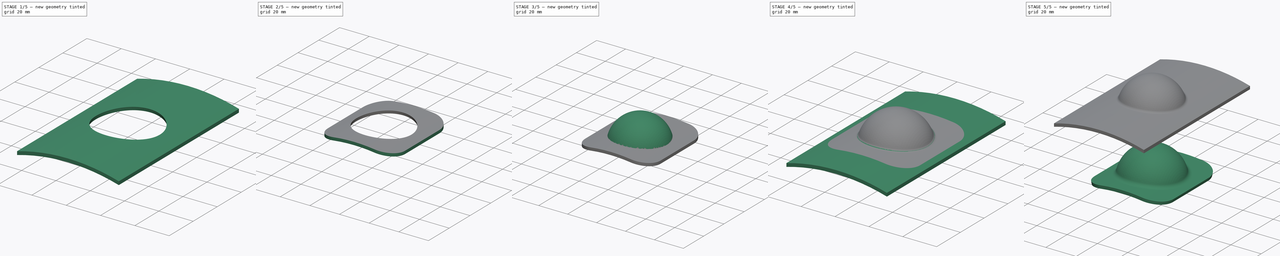
[diagram: build sequence overview — one tinted view per stage of 5, left to right]
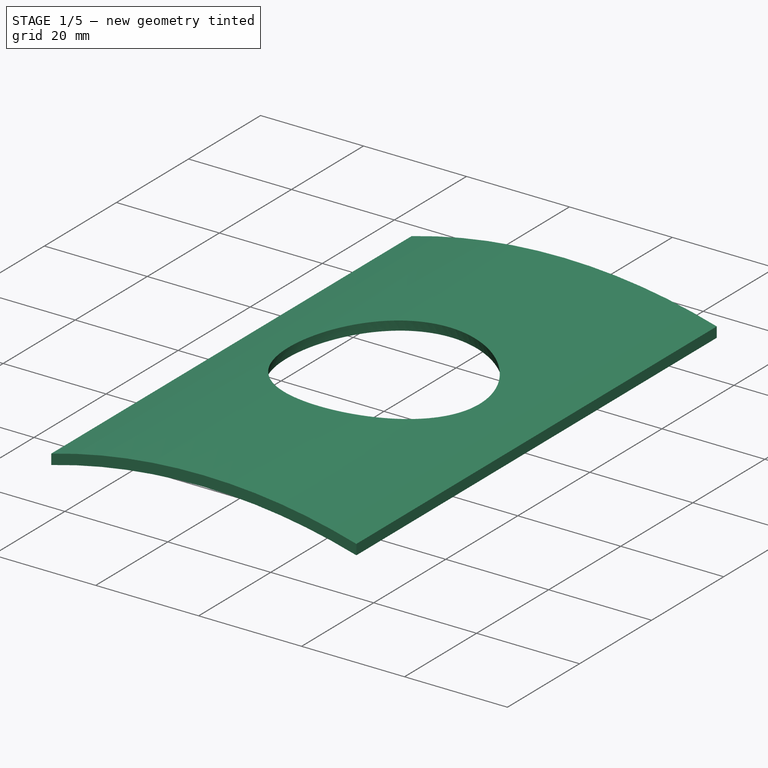
[diagram: stage 1 of 5 — iso view after this stage's code; geometry added in this stage tinted green]
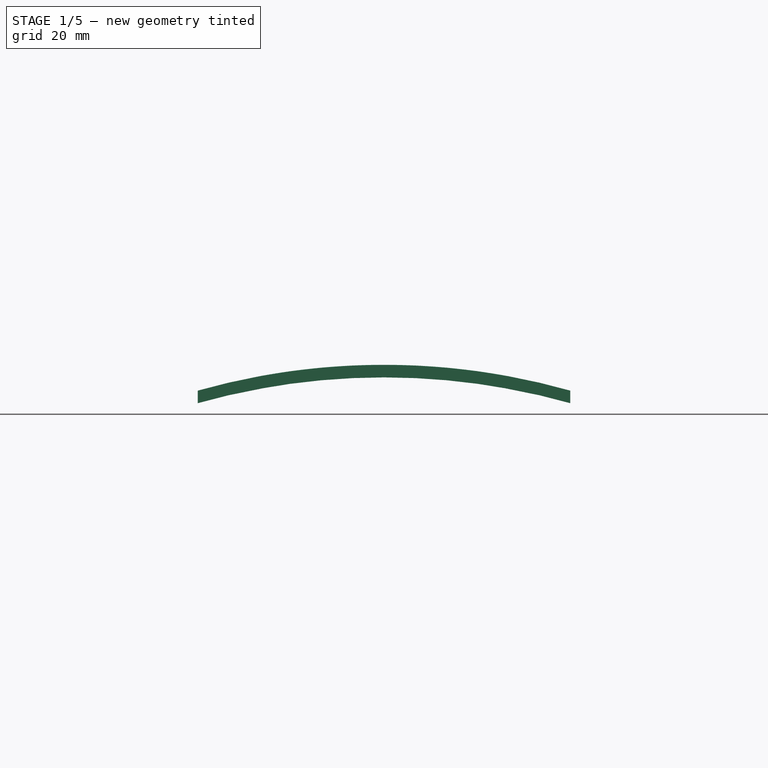
[diagram: stage 1 of 5 — front view after this stage's code; geometry added in this stage tinted green]
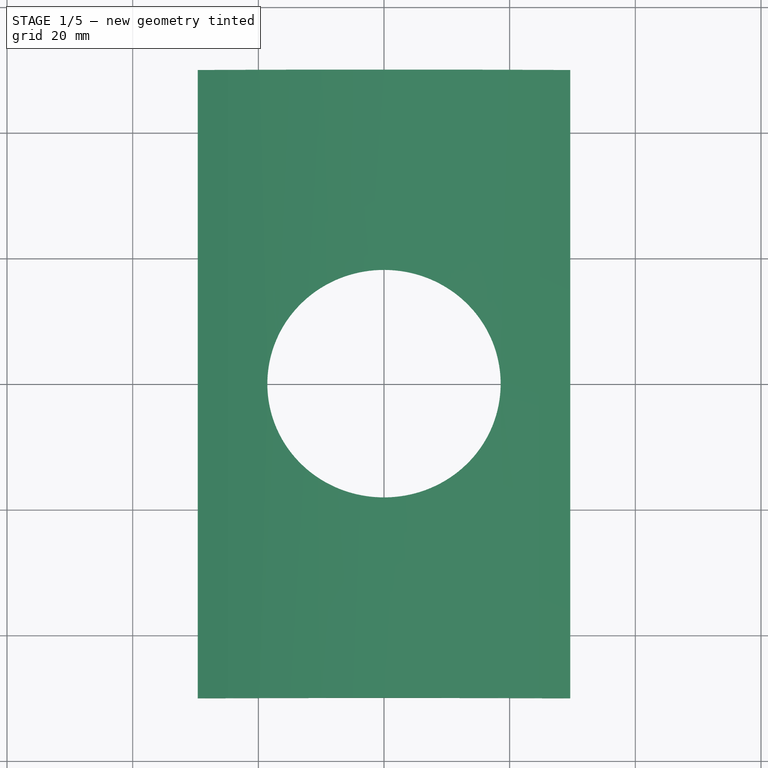
[diagram: stage 1 of 5 — top view after this stage's code; geometry added in this stage tinted green]
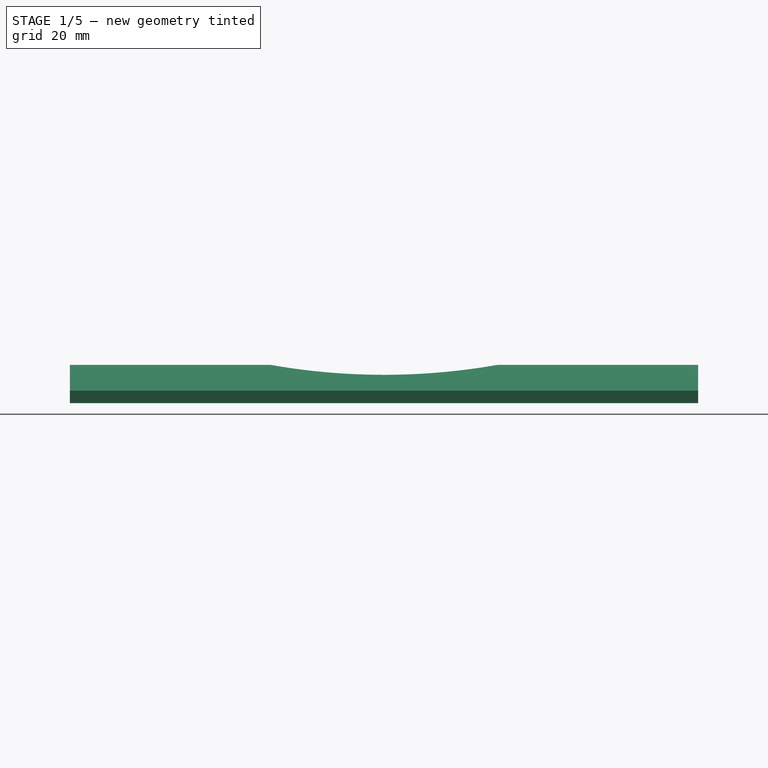
[diagram: stage 1 of 5 — right view after this stage's code; geometry added in this stage tinted green]
FCSTD DOCUMENT  (FreeCAD 0.21RUnknown)
Label: part29
License: All rights reserved
LicenseURL: http://en.wikipedia.org/wiki/All_rights_reserved
objects: Part::FeaturePython×20, Sketcher::SketchObject×6, App::DocumentObjectGroup×6, Part::Extrusion×5, Part::Revolution×2, Part::MultiFuse×2, Part::Fillet×2, Part::Offset×1
note: 38 computed .brp shape members not serialized (recipe doc carries the construction recipe); baked Part::Feature solids carry a one-line shape summary decoded from their .brp

FEATURE [Sketcher::SketchObject] Sketch003
  FullyConstrained = false
  Placement = pos=(0,0,0) rot=(1,0,0;1.5708rad)
  sketch-geometry (4):
    g0: ArcOfCircle CenterX=0 CenterY=0 CenterZ=0 NormalX=0 NormalY=0 NormalZ=1 AngleXU=0 Radius=19.1084 StartAngle=0 EndAngle=3.14159
    g1: ArcOfCircle CenterX=0 CenterY=0 CenterZ=0 NormalX=0 NormalY=0 NormalZ=1 AngleXU=0 Radius=18.1084 StartAngle=6.28319 EndAngle=9.42478
    g2: LineSegment StartX=-19.1084 StartY=0 StartZ=0 EndX=-18.1084 EndY=6.7e-15 EndZ=0
    g3: LineSegment StartX=18.1084 StartY=-1.82284e-08 StartZ=0 EndX=19.1084 EndY=0 EndZ=0
  constraints (11):
    c: PointOnObject(g0,g-1)
    c: PointOnObject(g0,g-1)
    c: Coincident(g0,g-1)
    c: PointOnObject(g1,g-1)
    c: Coincident(g1,g0)
    c: Coincident(g2,g0)
    c: Coincident(g2,g1)
    c: Coincident(g3,g1)
    c: Coincident(g3,g0)
    c: DistanceX(g2,g2) = 1
    c: Equal(g2,g3)
FEATURE [Part::Revolution] Revolve001
  Angle = 180
  Axis = (1,0,0)
  Base = (0,0,0)
  FaceMakerClass = Part::FaceMakerBullseye
  Solid = true
  Source = -> Sketch003
  Symmetric = true
FEATURE [Part::Extrusion] Extrude004
  Base = -> Extrude002
  Dir = (0,0,1)
  DirMode = 0
  FaceMakerClass = Part::FaceMakerBullseye
  LengthFwd = 2
  LengthRev = 0
  Solid = true
  Symmetric = false
FEATURE [Part::FeaturePython] Slice004  # WARN: FeaturePython — macro-defined, semantics opaque (R4)
  Base = -> Extrude004
  Mode = 1
  Tolerance = 0
  Tools = -> [Revolve001]
FEATURE [Part::FeaturePython] Slice004_child0  label="Slice004.0"  # WARN: FeaturePython — macro-defined, semantics opaque (R4)
  Base = -> Slice004
  FilterType = 1
  Invert = false
  OverrideMaxVal = 0
  WindowFrom = 80
  WindowTo = 100
  items = 0
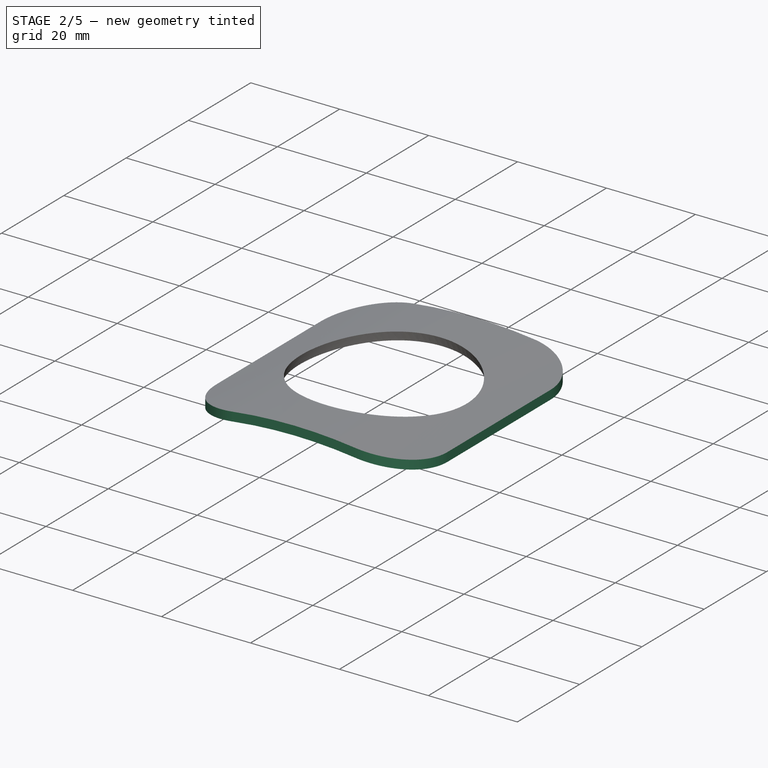
[diagram: stage 2 of 5 — iso view after this stage's code; geometry added in this stage tinted green]
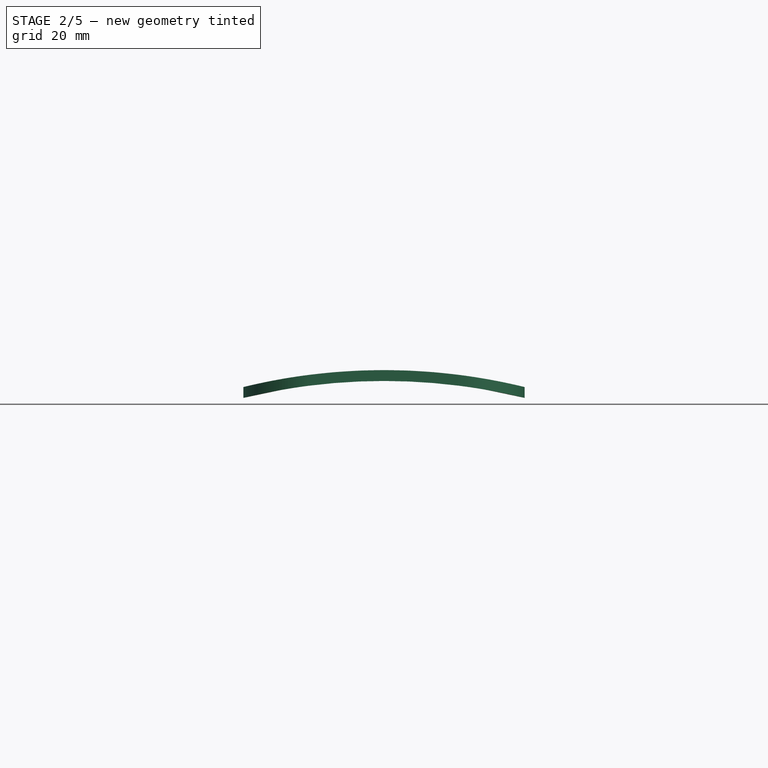
[diagram: stage 2 of 5 — front view after this stage's code; geometry added in this stage tinted green]
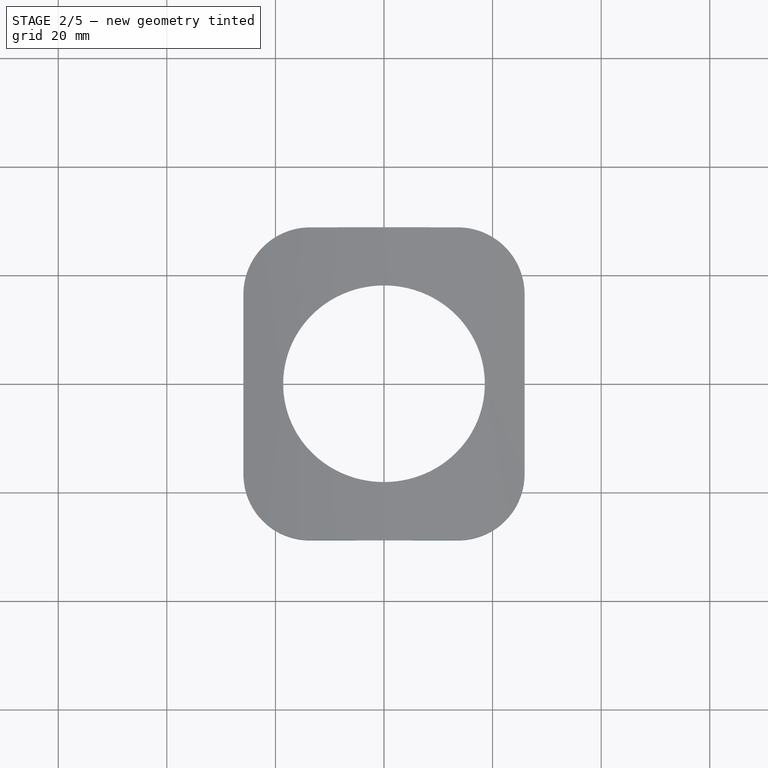
[diagram: stage 2 of 5 — top view after this stage's code; geometry added in this stage tinted green]
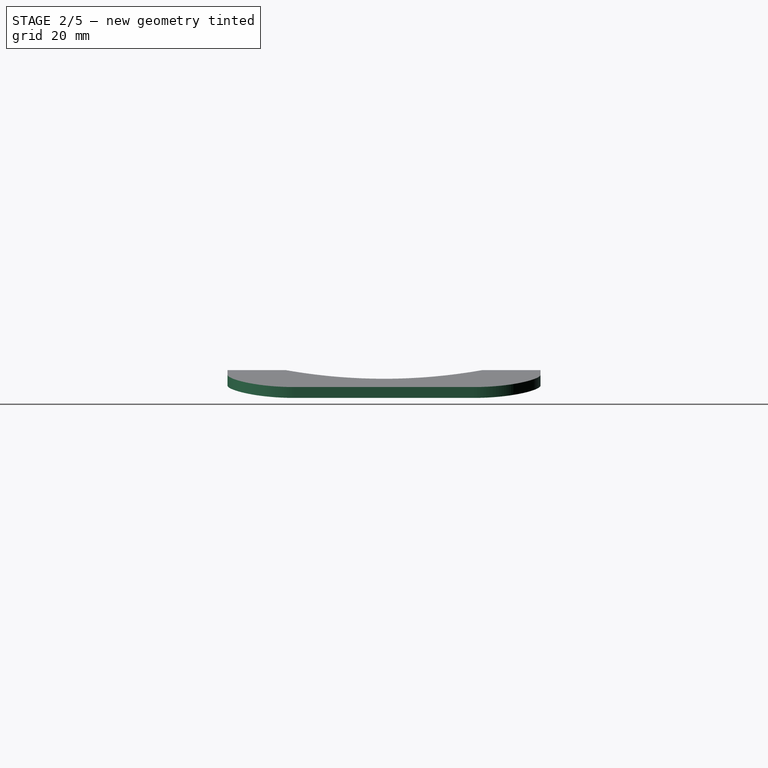
[diagram: stage 2 of 5 — right view after this stage's code; geometry added in this stage tinted green]
FEATURE [Sketcher::SketchObject] Sketch004
  FullyConstrained = false
  Placement = pos=(0,0,0) rot=(1,0,0;1.5708rad)
  sketch-geometry (1):
    g0: ArcOfCircle CenterX=-7.4e-15 CenterY=-104.915 CenterZ=0 NormalX=0 NormalY=0 NormalZ=1 AngleXU=0 Radius=109.022 StartAngle=1.29543 EndAngle=1.84616
  constraints (2):
    c: PointOnObject(g0,g-1)
    c: Symmetric(g0,g0,g-1)
FEATURE [Part::Extrusion] Extrude002
  Base = -> Sketch004
  Dir = (0,-1,2e-16)
  DirMode = 2
  FaceMakerClass = Part::FaceMakerBullseye
  LengthFwd = 100
  LengthRev = 0
  Solid = false
  Symmetric = true
FEATURE [Sketcher::SketchObject] Sketch005
  FullyConstrained = false
  sketch-geometry (10):
    g0: ArcOfCircle CenterX=-13.6277 CenterY=16.5579 CenterZ=0 NormalX=0 NormalY=0 NormalZ=1 AngleXU=0 Radius=12.2672 StartAngle=1.5708 EndAngle=3.14159
    g1: LineSegment StartX=-13.6277 StartY=28.8251 StartZ=0 EndX=13.6277 EndY=28.8251 EndZ=0
    g2: ArcOfCircle CenterX=13.6277 CenterY=16.5579 CenterZ=0 NormalX=0 NormalY=0 NormalZ=1 AngleXU=0 Radius=12.2672 StartAngle=0 EndAngle=1.5708
    g3: LineSegment StartX=25.8948 StartY=16.5579 StartZ=0 EndX=25.8948 EndY=-16.5579 EndZ=0
    g4: ArcOfCircle CenterX=13.6277 CenterY=-16.5579 CenterZ=0 NormalX=0 NormalY=0 NormalZ=1 AngleXU=0 Radius=12.2672 StartAngle=4.71239 EndAngle=6.28319
    g5: LineSegment StartX=13.6277 StartY=-28.8251 StartZ=0 EndX=-13.6277 EndY=-28.8251 EndZ=0
    g6: ArcOfCircle CenterX=-13.6277 CenterY=-16.5579 CenterZ=0 NormalX=0 NormalY=0 NormalZ=1 AngleXU=0 Radius=12.2672 StartAngle=3.14159 EndAngle=4.71239
    g7: LineSegment StartX=-25.8948 StartY=-16.5579 StartZ=0 EndX=-25.8948 EndY=16.5579 EndZ=0
    g8: GeomPoint X=-25.8948 Y=28.8251 Z=0
    g9: GeomPoint X=25.8948 Y=-28.8251 Z=0
  constraints (20):
    c: Tangent(g0,g1) = 1.5708
    c: Tangent(g1,g2) = 1.5708
    c: Tangent(g2,g3) = 1.5708
    c: Tangent(g3,g4) = 1.5708
    c: Tangent(g4,g5) = 1.5708
    c: Tangent(g5,g6) = 1.5708
    c: Tangent(g6,g7) = 1.5708
    c: Tangent(g7,g0) = 1.5708
    c: Horizontal(g1)
    c: Horizontal(g5)
    c: Vertical(g3)
    c: Vertical(g7)
    c: Equal(g0,g2)
    c: Equal(g2,g4)
    c: Equal(g4,g6)
    c: PointOnObject(g8,g1)
    c: PointOnObject(g8,g7)
    c: PointOnObject(g9,g3)
    c: PointOnObject(g9,g5)
    c: Symmetric(g6,g2,g-1)
FEATURE [Part::Extrusion] Extrude003
  Base = -> Sketch005
  Dir = (0,0,1)
  DirMode = 2
  FaceMakerClass = Part::FaceMakerBullseye
  LengthFwd = 15
  LengthRev = 0
  Solid = true
  Symmetric = false
FEATURE [App::DocumentObjectGroup] GrExplode_Slice004  label="Exploded Slice004"
  Group = -> [Slice004_child0,Slice004_child1,Slice004_child2]
FEATURE [Part::FeaturePython] Slice005  # WARN: FeaturePython — macro-defined, semantics opaque (R4)
  Base = -> Slice004_child0
  Mode = 1
  Tolerance = 0
  Tools = -> [Extrude003]
FEATURE [App::DocumentObjectGroup] GrExplode_Slice005  label="Exploded Slice005"
  Group = -> [Slice005_child0]
FEATURE [Part::FeaturePython] Slice005_child1  label="Slice005.1"  # WARN: FeaturePython — macro-defined, semantics opaque (R4)
  Base = -> Slice005
  FilterType = 1
  Invert = false
  OverrideMaxVal = 0
  WindowFrom = 80
  WindowTo = 100
  items = 1
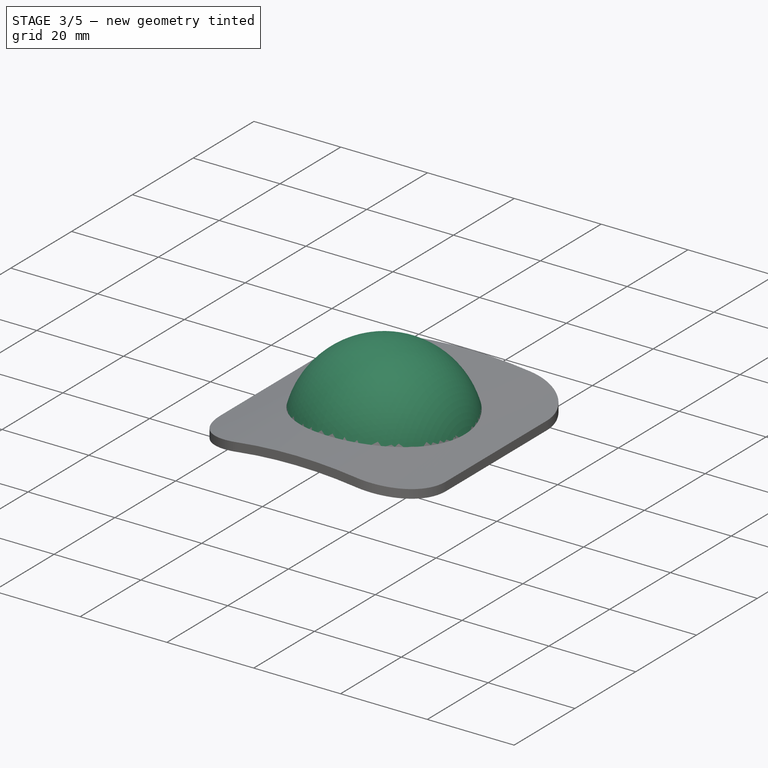
[diagram: stage 3 of 5 — iso view after this stage's code; geometry added in this stage tinted green]
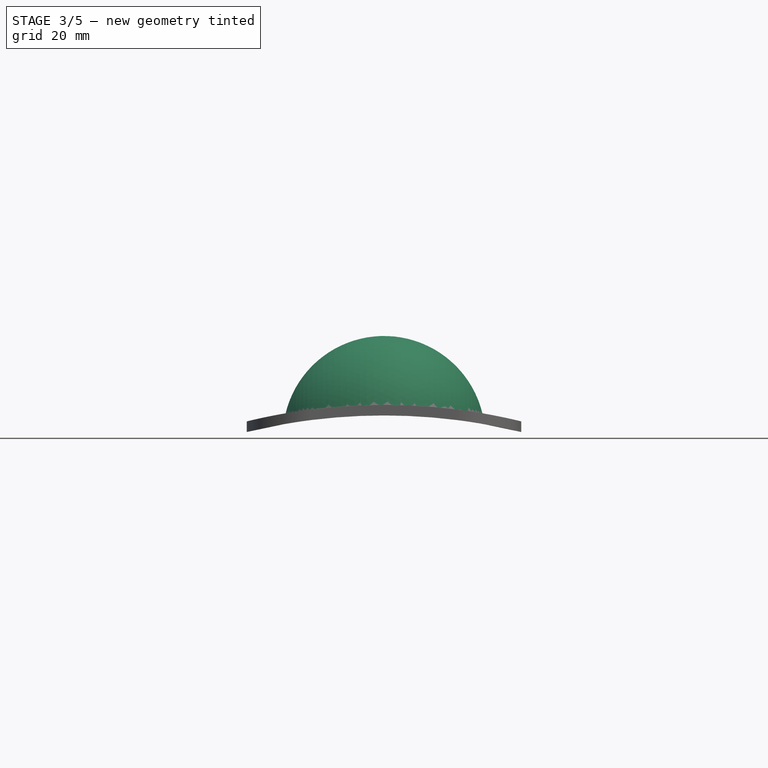
[diagram: stage 3 of 5 — front view after this stage's code; geometry added in this stage tinted green]
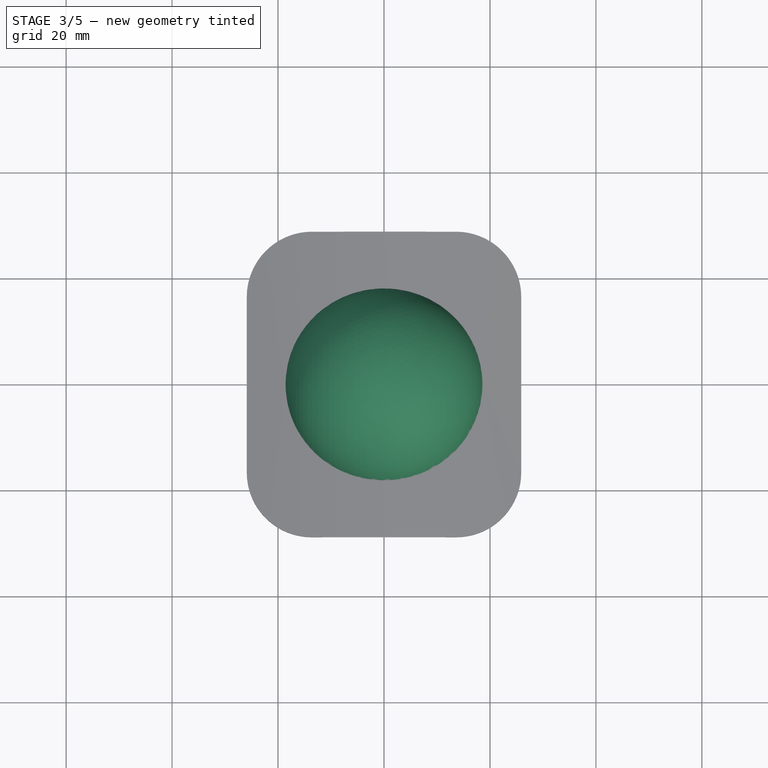
[diagram: stage 3 of 5 — top view after this stage's code; geometry added in this stage tinted green]
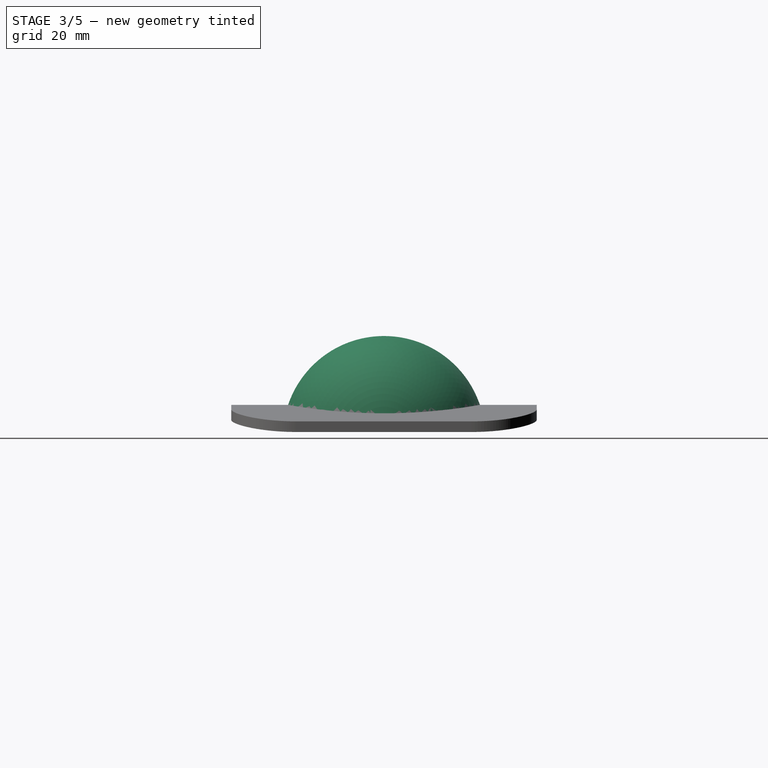
[diagram: stage 3 of 5 — right view after this stage's code; geometry added in this stage tinted green]
FEATURE [Part::FeaturePython] Slice003  # WARN: FeaturePython — macro-defined, semantics opaque (R4)
  Base = -> Revolve001
  Mode = 1
  Tolerance = 0
  Tools = -> [Extrude004]
FEATURE [Part::FeaturePython] Slice003_child1  label="Slice003.1"  # WARN: FeaturePython — macro-defined, semantics opaque (R4)
  Base = -> Slice003
  FilterType = 1
  Invert = false
  OverrideMaxVal = 0
  WindowFrom = 80
  WindowTo = 100
  items = 1
FEATURE [Part::FeaturePython] Slice003_child2  label="Slice003.2"  # WARN: FeaturePython — macro-defined, semantics opaque (R4)
  Base = -> Slice003
  FilterType = 1
  Invert = false
  OverrideMaxVal = 0
  WindowFrom = 80
  WindowTo = 100
  items = 2
FEATURE [Part::MultiFuse] Fusion001
  Shapes = -> [Slice005_child1,Slice003_child2,Slice003_child1]
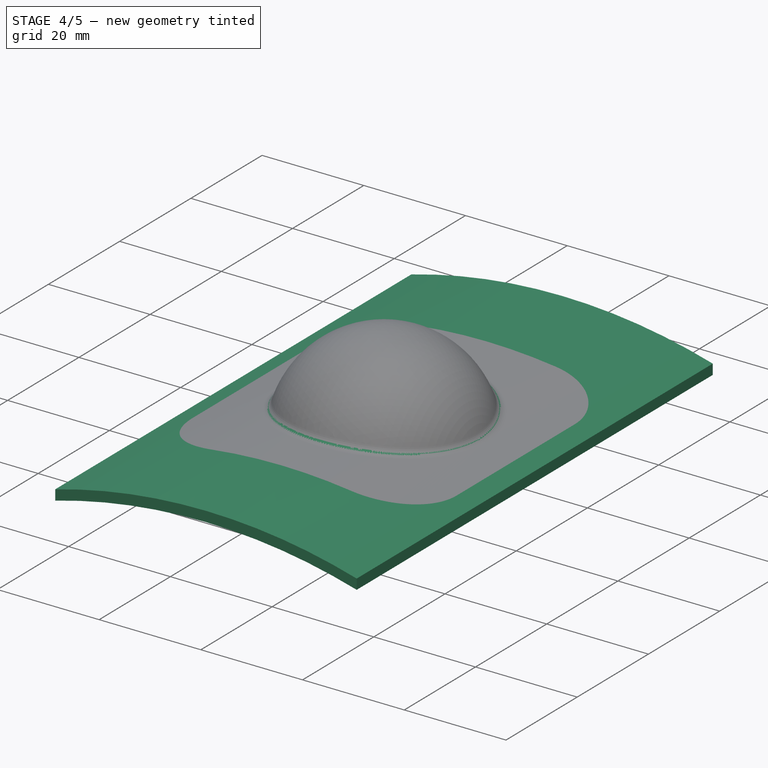
[diagram: stage 4 of 5 — iso view after this stage's code; geometry added in this stage tinted green]
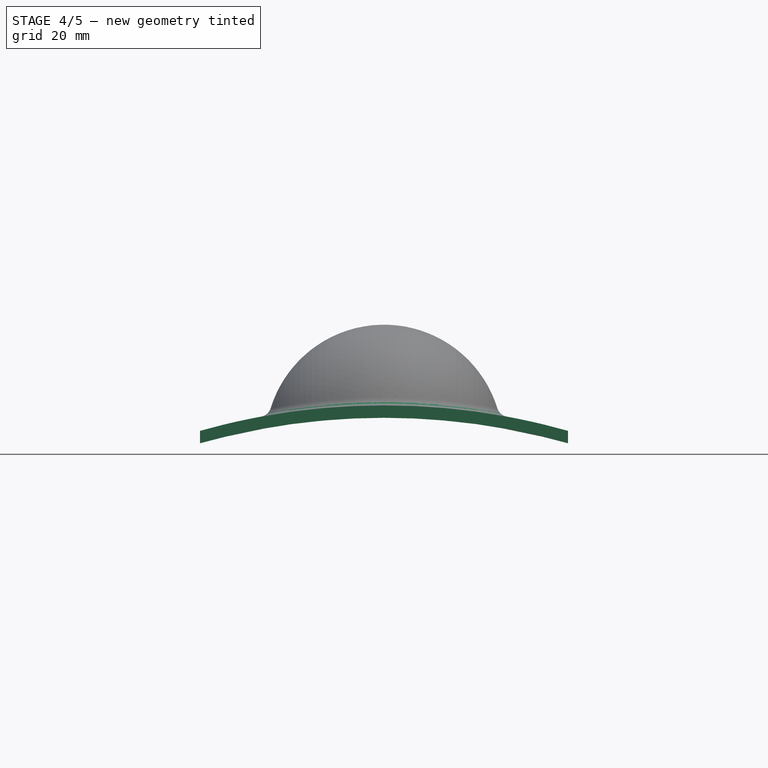
[diagram: stage 4 of 5 — front view after this stage's code; geometry added in this stage tinted green]
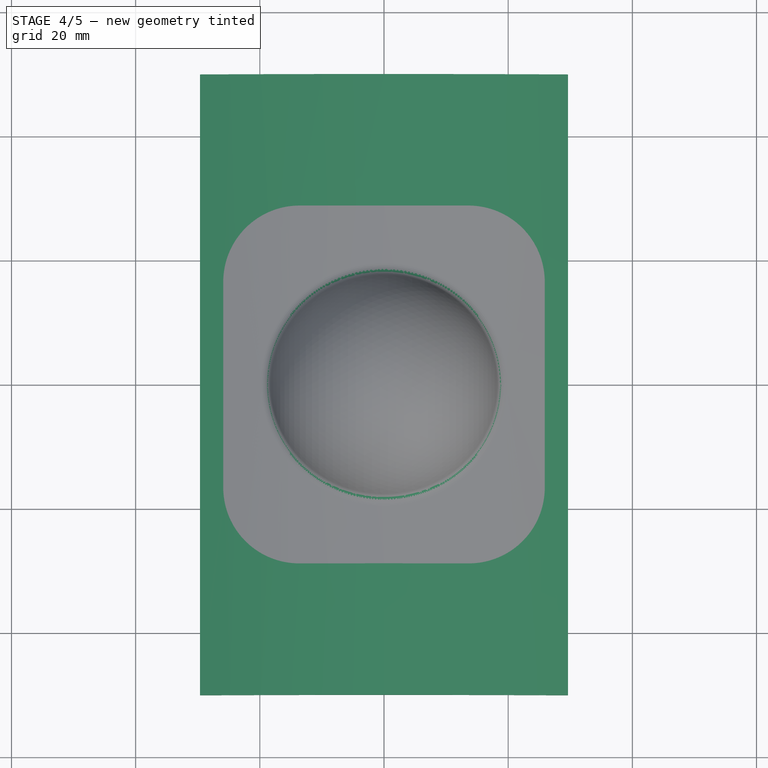
[diagram: stage 4 of 5 — top view after this stage's code; geometry added in this stage tinted green]
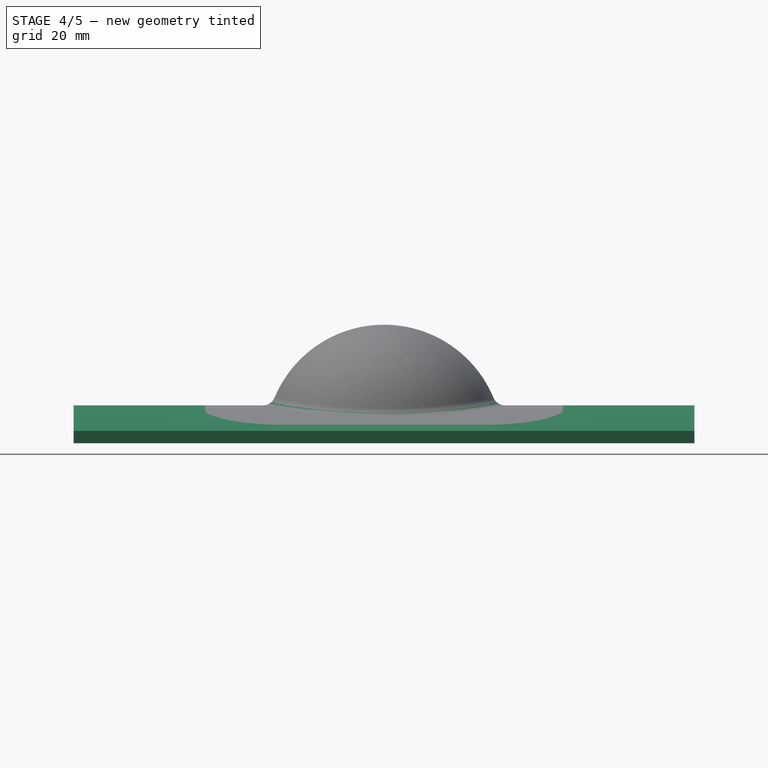
[diagram: stage 4 of 5 — right view after this stage's code; geometry added in this stage tinted green]
FEATURE [Part::FeaturePython] Slice004_child2  label="Slice004.2"  # WARN: FeaturePython — macro-defined, semantics opaque (R4)
  Base = -> Slice004
  FilterType = 1
  Invert = false
  OverrideMaxVal = 0
  WindowFrom = 80
  WindowTo = 100
  items = 2
FEATURE [Part::FeaturePython] Slice005_child0  label="Slice005.0"  # WARN: FeaturePython — macro-defined, semantics opaque (R4)
  Base = -> Slice005
  FilterType = 1
  Invert = false
  OverrideMaxVal = 0
  WindowFrom = 80
  WindowTo = 100
  items = 0
FEATURE [App::DocumentObjectGroup] GrExplode_Slice003  label="Exploded Slice003"
  Group = -> [Slice003_child0,Fusion001]
FEATURE [Part::Fillet] Fillet001  label="Fillet001 Using Solids"
  Base = -> Fusion001
  Edges = 1 edges r=2: [Edge1]
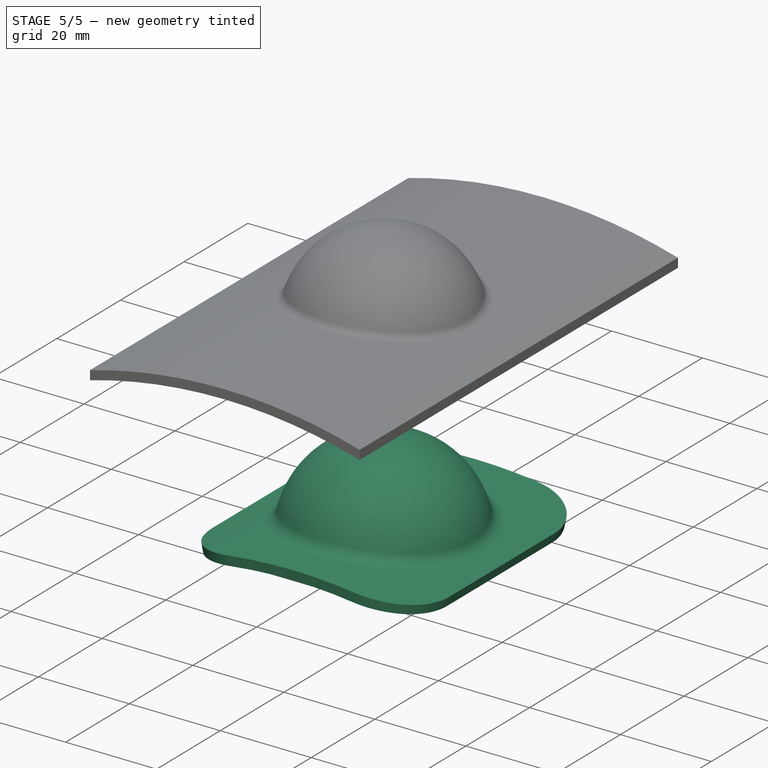
[diagram: stage 5 of 5 — iso view after this stage's code; geometry added in this stage tinted green]
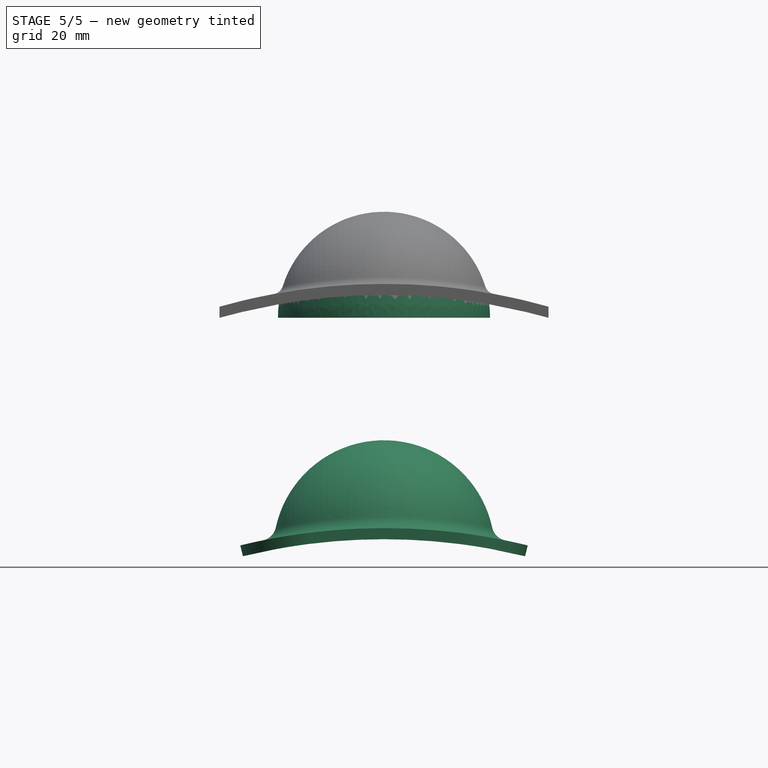
[diagram: stage 5 of 5 — front view after this stage's code; geometry added in this stage tinted green]
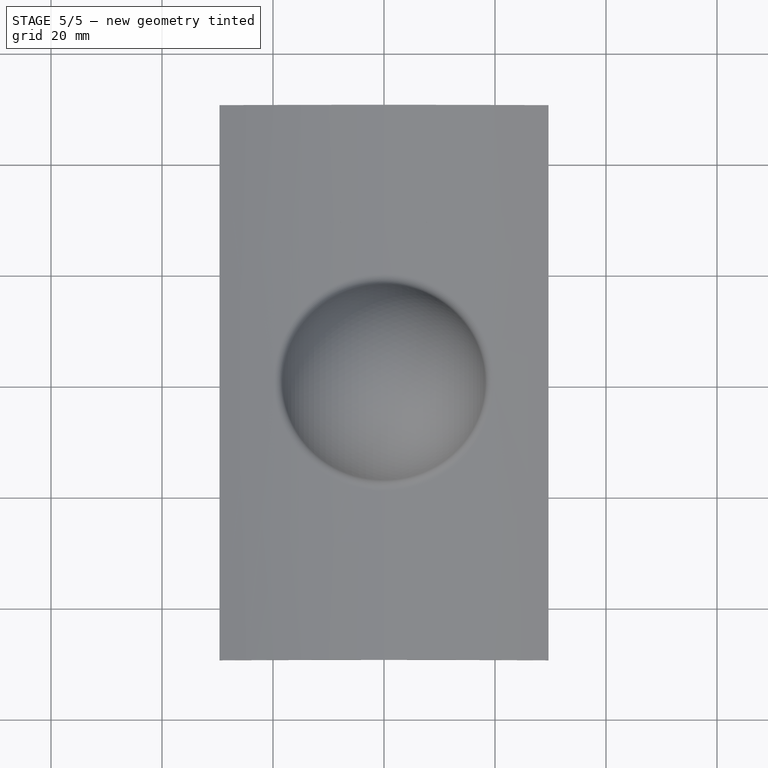
[diagram: stage 5 of 5 — top view after this stage's code; geometry added in this stage tinted green]
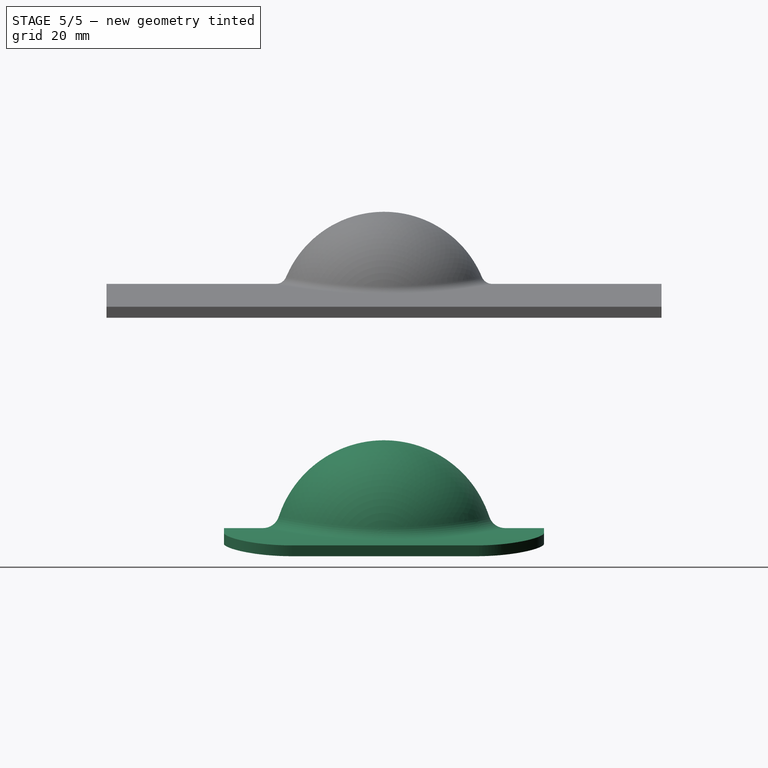
[diagram: stage 5 of 5 — right view after this stage's code; geometry added in this stage tinted green]
FEATURE [Sketcher::SketchObject] Sketch
  FullyConstrained = false
  Placement = pos=(0,0,0) rot=(1,0,0;1.5708rad)
  sketch-geometry (1):
    g0: ArcOfCircle CenterX=0 CenterY=0 CenterZ=0 NormalX=0 NormalY=0 NormalZ=1 AngleXU=0 Radius=19.9433 StartAngle=0 EndAngle=3.14159
  constraints (3):
    c: PointOnObject(g0,g-1)
    c: PointOnObject(g0,g-1)
    c: Coincident(g0,g-1)
FEATURE [Part::Revolution] Revolve
  Angle = 180
  Axis = (1,0,0)
  Base = (0,0,0)
  FaceMakerClass = Part::FaceMakerBullseye
  Solid = false
  Source = -> Sketch
  Symmetric = true
FEATURE [Sketcher::SketchObject] Sketch001
  FullyConstrained = false
  Placement = pos=(0,0,0) rot=(1,0,0;1.5708rad)
  sketch-geometry (1):
    g0: ArcOfCircle CenterX=-7.4e-15 CenterY=-104.915 CenterZ=0 NormalX=0 NormalY=0 NormalZ=1 AngleXU=0 Radius=109.022 StartAngle=1.29543 EndAngle=1.84616
  constraints (2):
    c: PointOnObject(g0,g-1)
    c: Symmetric(g0,g0,g-1)
FEATURE [Part::Extrusion] Extrude
  Base = -> Sketch001
  Dir = (0,-1,-3e-16)
  DirMode = 2
  FaceMakerClass = Part::FaceMakerBullseye
  LengthFwd = 100
  LengthRev = 0
  Solid = false
  Symmetric = true
FEATURE [Sketcher::SketchObject] Sketch002
  FullyConstrained = false
  sketch-geometry (10):
    g0: ArcOfCircle CenterX=-13.6277 CenterY=16.5579 CenterZ=0 NormalX=0 NormalY=0 NormalZ=1 AngleXU=0 Radius=12.2672 StartAngle=1.5708 EndAngle=3.14159
    g1: LineSegment StartX=-13.6277 StartY=28.8251 StartZ=0 EndX=13.6277 EndY=28.8251 EndZ=0
    g2: ArcOfCircle CenterX=13.6277 CenterY=16.5579 CenterZ=0 NormalX=0 NormalY=0 NormalZ=1 AngleXU=0 Radius=12.2672 StartAngle=0 EndAngle=1.5708
    g3: LineSegment StartX=25.8948 StartY=16.5579 StartZ=0 EndX=25.8948 EndY=-16.5579 EndZ=0
    g4: ArcOfCircle CenterX=13.6277 CenterY=-16.5579 CenterZ=0 NormalX=0 NormalY=0 NormalZ=1 AngleXU=0 Radius=12.2672 StartAngle=4.71239 EndAngle=6.28319
    g5: LineSegment StartX=13.6277 StartY=-28.8251 StartZ=0 EndX=-13.6277 EndY=-28.8251 EndZ=0
    g6: ArcOfCircle CenterX=-13.6277 CenterY=-16.5579 CenterZ=0 NormalX=0 NormalY=0 NormalZ=1 AngleXU=0 Radius=12.2672 StartAngle=3.14159 EndAngle=4.71239
    g7: LineSegment StartX=-25.8948 StartY=-16.5579 StartZ=0 EndX=-25.8948 EndY=16.5579 EndZ=0
    g8: GeomPoint X=-25.8948 Y=28.8251 Z=0
    g9: GeomPoint X=25.8948 Y=-28.8251 Z=0
  constraints (20):
    c: Tangent(g0,g1) = 1.5708
    c: Tangent(g1,g2) = 1.5708
    c: Tangent(g2,g3) = 1.5708
    c: Tangent(g3,g4) = 1.5708
    c: Tangent(g4,g5) = 1.5708
    c: Tangent(g5,g6) = 1.5708
    c: Tangent(g6,g7) = 1.5708
    c: Tangent(g7,g0) = 1.5708
    c: Horizontal(g1)
    c: Horizontal(g5)
    c: Vertical(g3)
    c: Vertical(g7)
    c: Equal(g0,g2)
    c: Equal(g2,g4)
    c: Equal(g4,g6)
    c: PointOnObject(g8,g1)
    c: PointOnObject(g8,g7)
    c: PointOnObject(g9,g3)
    c: PointOnObject(g9,g5)
    c: Symmetric(g6,g2,g-1)
FEATURE [Part::Extrusion] Extrude001
  Base = -> Sketch002
  Dir = (0,0,1)
  DirMode = 2
  FaceMakerClass = Part::FaceMakerBullseye
  LengthFwd = 15
  LengthRev = 0
  Solid = false
  Symmetric = false
FEATURE [Part::FeaturePython] Slice  # WARN: FeaturePython — macro-defined, semantics opaque (R4)
  Base = -> Extrude
  Mode = 1
  Tolerance = 0
  Tools = -> [Extrude001]
FEATURE [Part::FeaturePython] Slice_child0  label="Slice.0"  # WARN: FeaturePython — macro-defined, semantics opaque (R4)
  Base = -> Slice
  FilterType = 1
  Invert = false
  OverrideMaxVal = 0
  WindowFrom = 80
  WindowTo = 100
  items = 0
FEATURE [Part::FeaturePython] Slice_child1  label="PanelSlice"  # WARN: FeaturePython — macro-defined, semantics opaque (R4)
  Base = -> Slice
  FilterType = 1
  Invert = false
  OverrideMaxVal = 0
  WindowFrom = 80
  WindowTo = 100
  items = 1
FEATURE [App::DocumentObjectGroup] GrExplode_Slice  label="Exploded Slice"
  Group = -> [Slice_child0,Slice_child1]
FEATURE [Part::FeaturePython] Slice001  # WARN: FeaturePython — macro-defined, semantics opaque (R4)
  Base = -> Slice_child1
  Mode = 1
  Tolerance = 0
  Tools = -> [Revolve]
FEATURE [Part::FeaturePython] Slice001_child0  label="PanelSliceWithHole"  # WARN: FeaturePython — macro-defined, semantics opaque (R4)
  Base = -> Slice001
  FilterType = 1
  Invert = false
  OverrideMaxVal = 0
  WindowFrom = 80
  WindowTo = 100
  items = 0
FEATURE [Part::FeaturePython] Slice001_child1  label="Slice001.1"  # WARN: FeaturePython — macro-defined, semantics opaque (R4)
  Base = -> Slice001
  FilterType = 1
  Invert = false
  OverrideMaxVal = 0
  WindowFrom = 80
  WindowTo = 100
  items = 1
FEATURE [App::DocumentObjectGroup] GrExplode_Slice001  label="Exploded Slice001"
  Group = -> [Slice001_child1]
FEATURE [Part::FeaturePython] Slice002  # WARN: FeaturePython — macro-defined, semantics opaque (R4)
  Base = -> Revolve
  Mode = 1
  Tolerance = 0
  Tools = -> [Slice001_child0]
FEATURE [Part::FeaturePython] Slice002_child0  label="Slice002.0"  # WARN: FeaturePython — macro-defined, semantics opaque (R4)
  Base = -> Slice002
  FilterType = 1
  Invert = false
  OverrideMaxVal = 0
  WindowFrom = 80
  WindowTo = 100
  items = 0
FEATURE [App::DocumentObjectGroup] GrExplode_Slice002  label="Exploded Slice002"
  Group = -> [Slice002_child0]
FEATURE [Part::FeaturePython] Slice002_child1  label="RevolveSlice"  # WARN: FeaturePython — macro-defined, semantics opaque (R4)
  Base = -> Slice002
  FilterType = 1
  Invert = false
  OverrideMaxVal = 0
  WindowFrom = 80
  WindowTo = 100
  items = 1
FEATURE [Part::MultiFuse] Fusion
  Shapes = -> [Slice002_child1,Slice001_child0]
FEATURE [Part::Offset] Offset
  Fill = true
  Intersection = false
  Join = 0
  Mode = 0
  SelfIntersection = false
  Source = -> Fusion
  Value = 2
FEATURE [Part::Fillet] Fillet  label="Fillet Using surfaces"
  Base = -> Offset
  Edges = 1 edges r=3: [Edge1]
  Placement = pos=(0,0,-42) rot=(0,0,1;0rad)
FEATURE [Part::FeaturePython] Slice003_child0  label="Slice003.0"  # WARN: FeaturePython — macro-defined, semantics opaque (R4)
  Base = -> Slice003
  FilterType = 1
  Invert = false
  OverrideMaxVal = 0
  WindowFrom = 80
  WindowTo = 100
  items = 0
FEATURE [Part::FeaturePython] Slice004_child1  label="Slice004.1"  # WARN: FeaturePython — macro-defined, semantics opaque (R4)
  Base = -> Slice004
  FilterType = 1
  Invert = false
  OverrideMaxVal = 0
  WindowFrom = 80
  WindowTo = 100
  items = 1
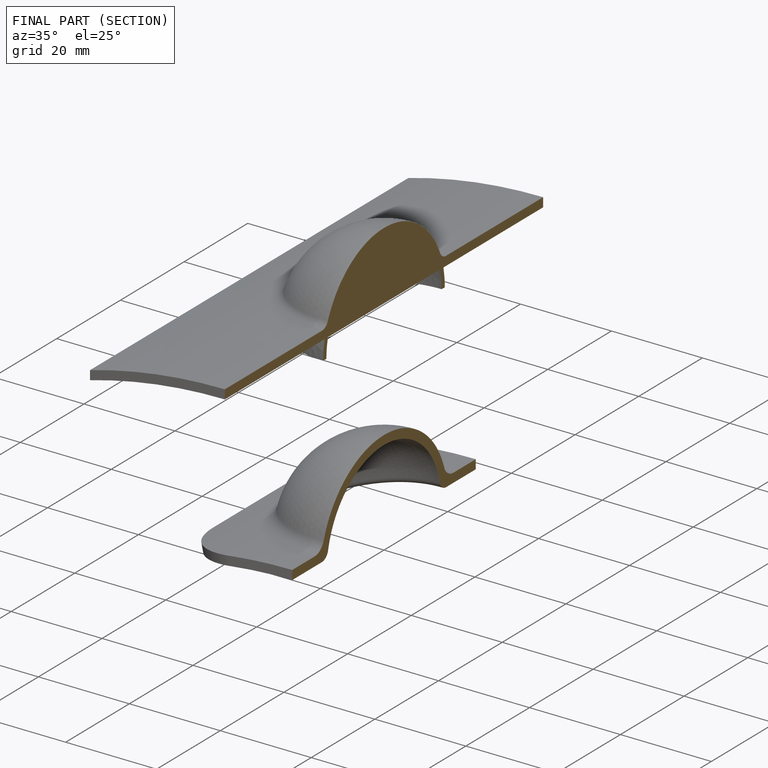
[diagram: finished part — half-section view (interior)]
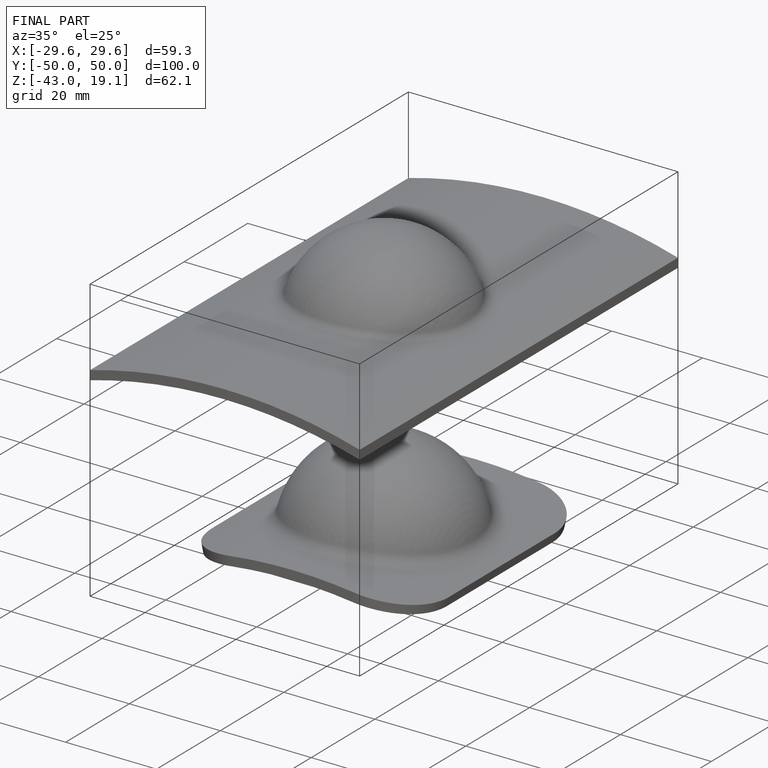
[diagram: finished part — iso view with bounding-box wireframe]
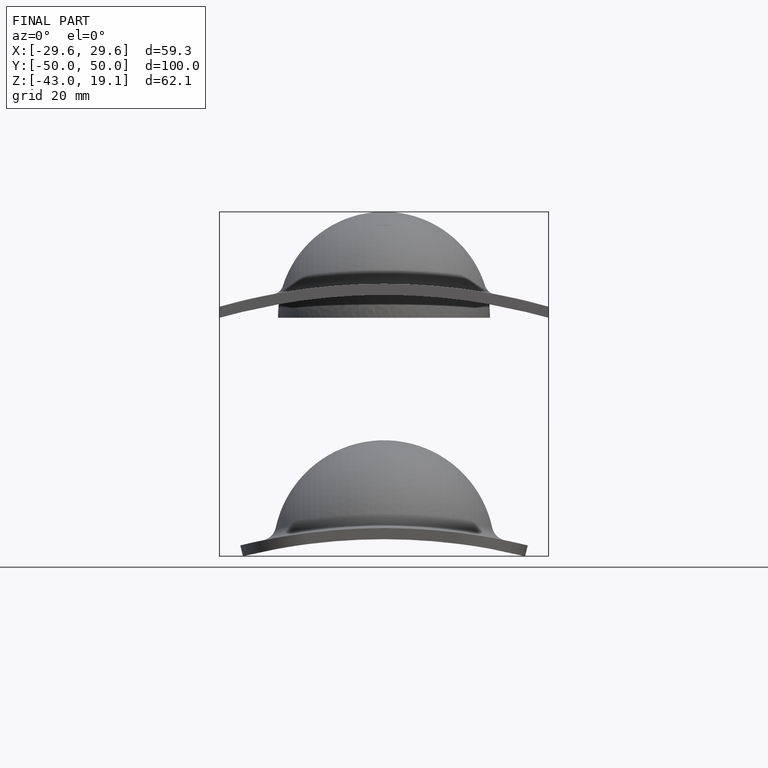
[diagram: finished part — front view with bounding-box wireframe]
